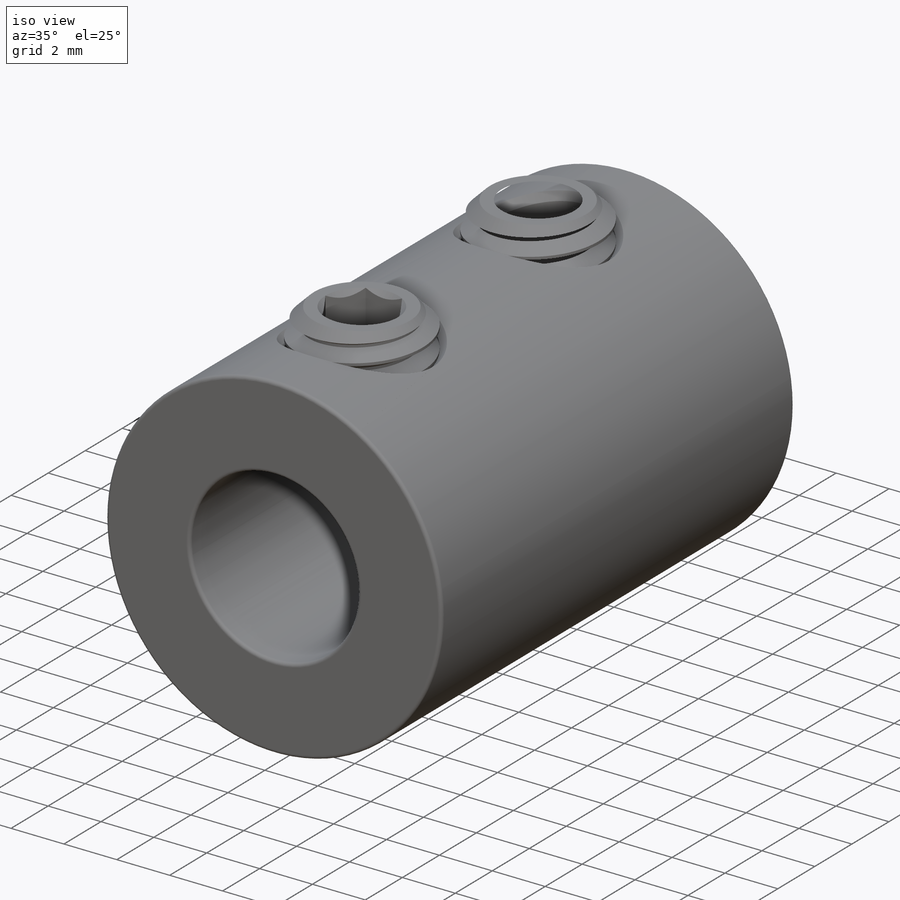
[diagram: iso view]
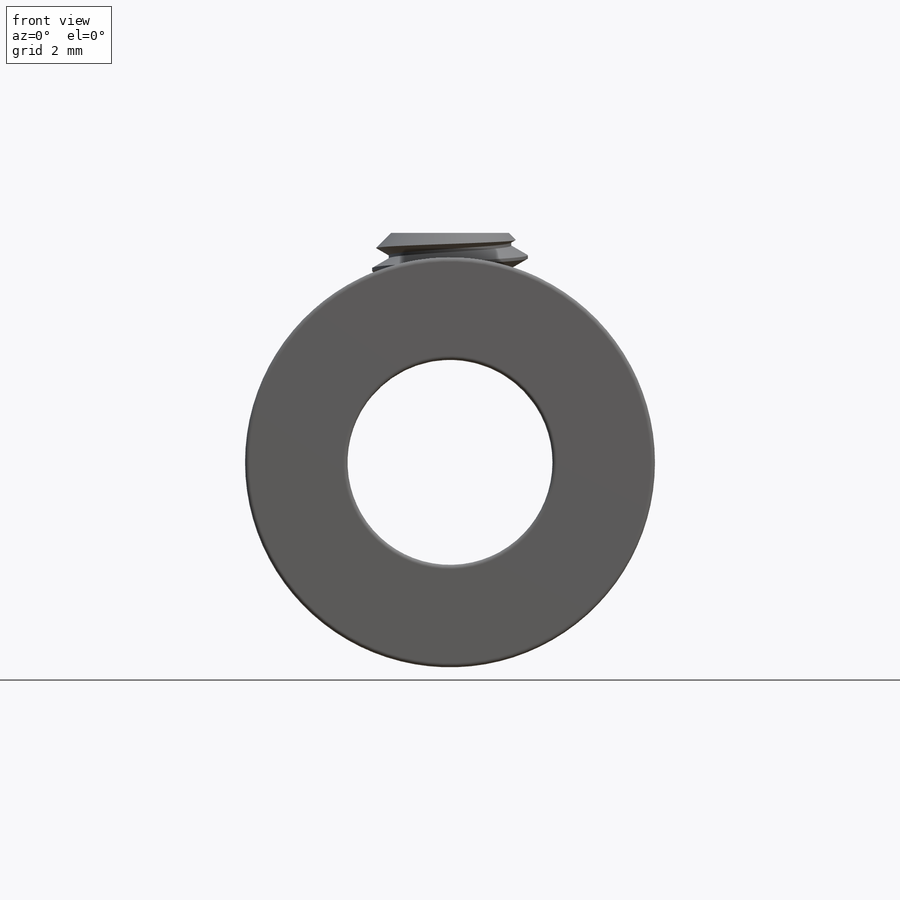
[diagram: front view]
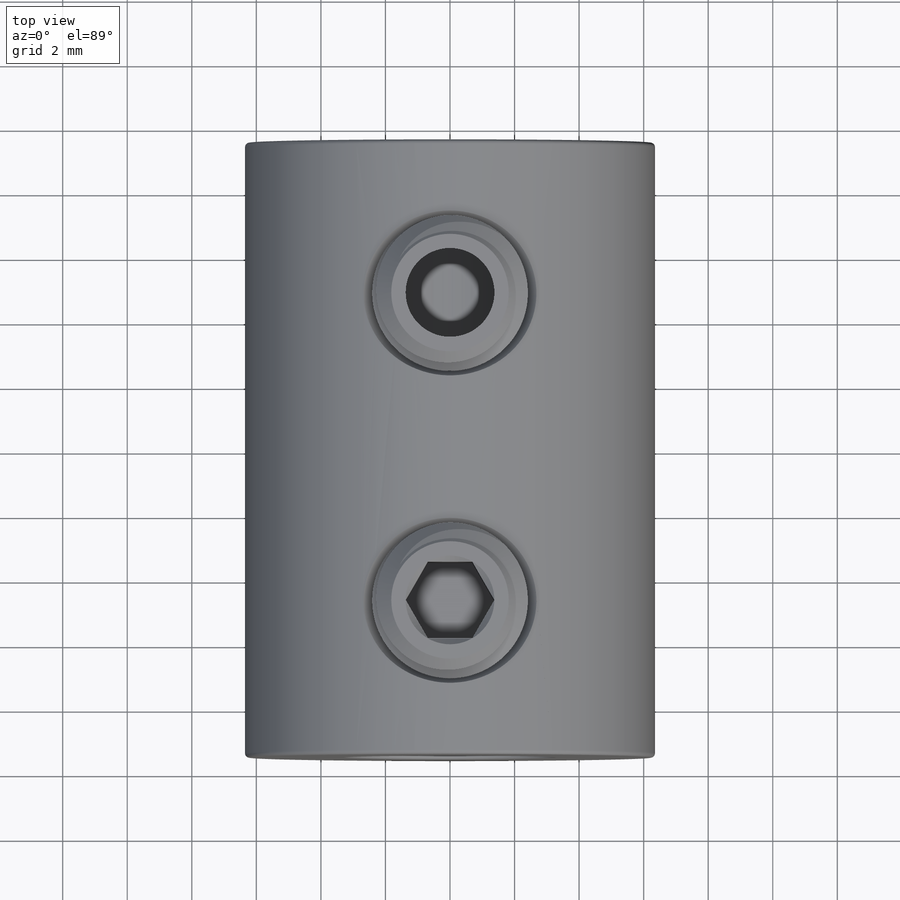
[diagram: top view]
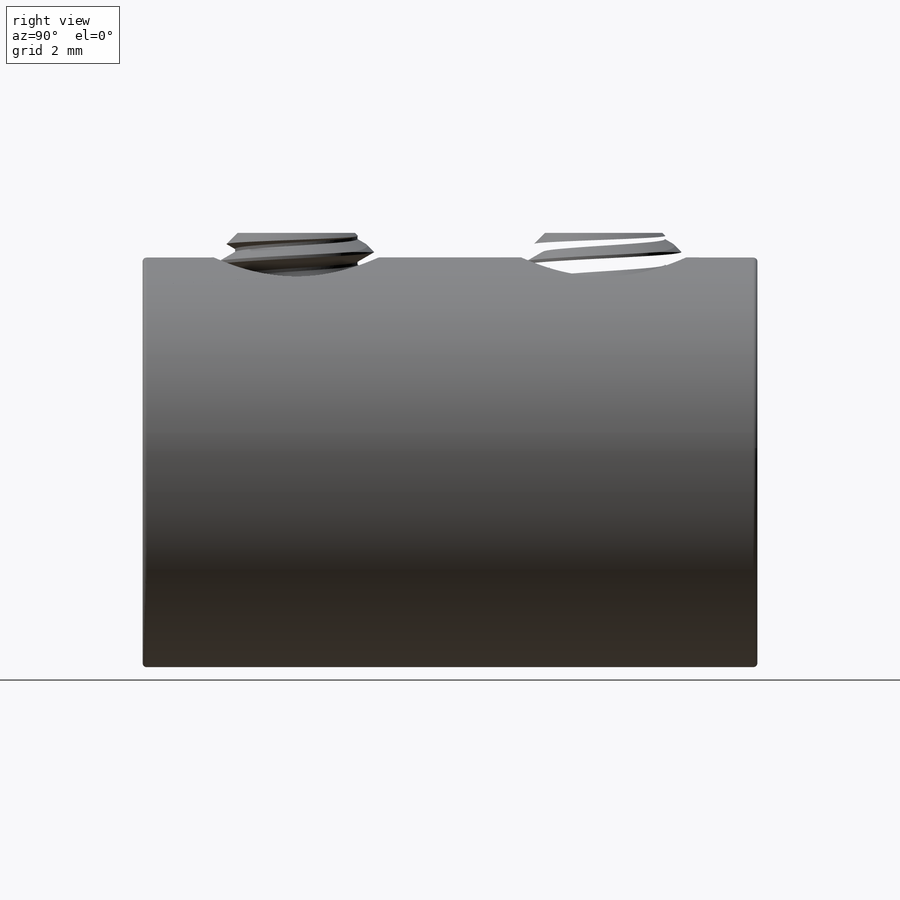
[diagram: right view]
SOLIDWORKS PART (.sldprt)
format: sldprt  version: not decoded by parser v0  size: 998,912 bytes
history: native  units: mm
features: sketch x8, cut_extrude x4, material x1, extrude x1, chamfer x1, fillet x1, plane x1, revolve x1, helix x1, sweep x1, pattern_linear x1 (+15 scaffold rows collapsed)
feature tree (36):
  scaffold x15  (default folders/planes/origin — collapsed)
  material  "Material <not specified>"
  sketch  "Sketch1"  dims[Bore Dia=6.35mm OD=12.7mm]
  extrude  "Extrude1"  Depth=19.05mm Width=19.05mm
  sketch  "Sketch2"  dims[Set Screw Dia=4.826mm D1=9.525mm D2=4.7625mm D3=4.7625mm]
  cut_extrude  "Cut-Extrude1"  [1 undecoded]
  chamfer  "Chamfer1"  Distance=0.381mm Angle=45deg
  sketch  "Sketch8"  dims[Keyway Width=~5.57901mm Keyway Height=~3.125828mm]
  cut_extrude  "Cut-Extrude4"  [1 undecoded]
  fillet  "Fillet1"  Radius=0.127mm
  plane  "Plane1"
  sketch  "Sketch3"  dims[c1.D3=19.05mm c1.D1=12.7mm c1.D2=~3.373437mm c2.D3=12.7mm c2.D1=12.7mm c2.D2=12.7mm c3.D3=12.7mm c3.D1=~14.199032mm c3.D2=~14.199032mm c4.D3=12.7mm c4.D4=12.7mm c5.D3=41.275mm c5.D4=41.275mm c5.D1=4.064mm c5.D2=~0.976923mm c6.D3=~1.953846mm c6.D1=~10.31875mm c6.Screw Length=3.175mm c6.D2=~0.578936mm c6.D4=~1.789217mm c6.D5=~0.636829mm c7.D2=~0.593248mm c7.D5=~2.262928mm c7.D1=~0.711898mm c7.D3=0.762mm]
  revolve  "Revolve1"  Angle=360deg
  sketch  "Sketch6"
  helix  "Helix/Spiral1"  Pitch=3.96875mm
  sketch  "Sketch7"  dims[c1.D1=~1.10971mm c2.D1=60.0deg c2.D2=~0.099219mm c2.D3=~0.396875mm]
  sweep  "Cut-Sweep1"
  sketch  "Sketch4"  dims[Hex Size=~2.38125mm]
  cut_extrude  "Cut-Extrude2"  Depth=2.38125mm
  sketch  "Sketch5"
  cut_extrude  "Cut-Extrude3"  [1 undecoded]
  pattern_linear  "LPattern1"  Count1=2 Count2=1 Spacing1=9.525mm Spacing2=0.254mm
decode coverage: 13 of 19 modeling features carry decoded parameters
note: ~ marks probable driven/reference dimensions
note: 3 parameter values undecoded
summary: no parameter record found for 3 features
note: suppression state not decoded; provenance and decode notes live in map.json
